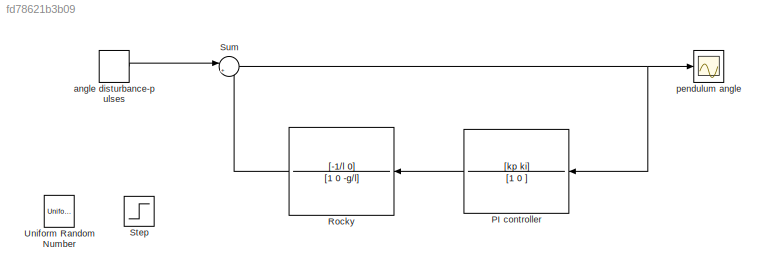
MODEL slx_fd78621b3b09
KIND model
CONFIG AbsTol = auto
CONFIG EnableMultiTasking = off
CONFIG FixedStep = auto
CONFIG MaxStep = auto
CONFIG MinStep = auto
CONFIG RelTol = 1e-3
CONFIG SampleTimeConstraint = Unconstrained
CONFIG SolverName = VariableStepAuto
CONFIG StartTime = 0.0
CONFIG StopTime = 100
WORKSPACE source: mxarray member
WORKSPACE m = 1000
BLOCK [TransferFcn] PI controller
  Denominator = [1 0 ]
  Numerator = [kp  ki]
BLOCK [TransferFcn] Rocky
  Denominator = [1 0 -g/l]
  Numerator = [-1/l 0]
BLOCK [Step] Step
  After = .1
  SampleTime = 0
BLOCK [Sum] Sum
  Inputs = |++
  Ports = [2, 1]
BLOCK [UniformRandomNumber] Uniform Random Number
  SampleTime = 20
BLOCK [DiscretePulseGenerator] angle disturbance-pulses
  Amplitude = .1
  Period = 10
  Ports = [0, 1]
  PulseType = Time based
BLOCK [Scope] pendulum angle
  Floating = off
  NumInputPorts = 1
  Ports = [1]
  ScopeSpecificationString = Simulink.scopes.TimeScopeBlockCfg('CurrentConfiguration', extmgr.ConfigurationSet(extmgr.Configuration('Core','General UI',true),extmgr.Configuration('Core','Source UI',true),extmgr.Configuration('Sources','WiredSimulink',true),extmgr.Configuration('Visuals','Time Domain',true,'SerializedDisplays',{struct('MinYLimReal','-0.00064','MaxYLimReal','0.00047','YLabelReal','','MinYLimMag','0.00000','MaxY...<+1410ch>
LINE PI controller:1 -> Rocky:1
LINE Rocky:1 -> Sum:2
NET Sum:1 -> PI controller:1, pendulum angle:1
LINE angle disturbance-pulses:1 -> Sum:1
note: NET lines group one-source signal fan-out (src -> all destinations, sorted); 1:1 wires keep LINE
